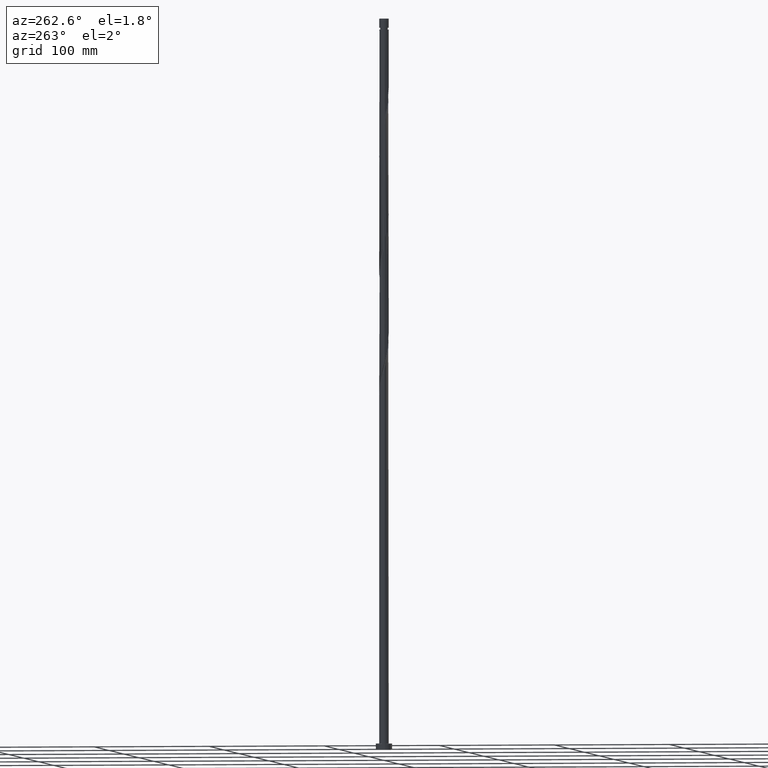
[diagram: clean part render]
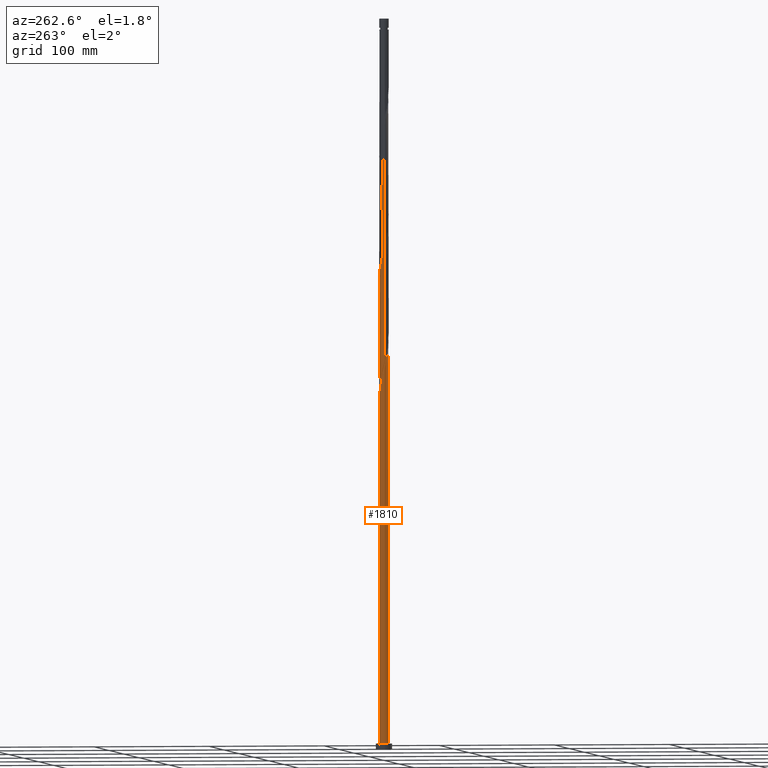
[diagram: same view with one face highlighted and labeled with its STEP entity id]
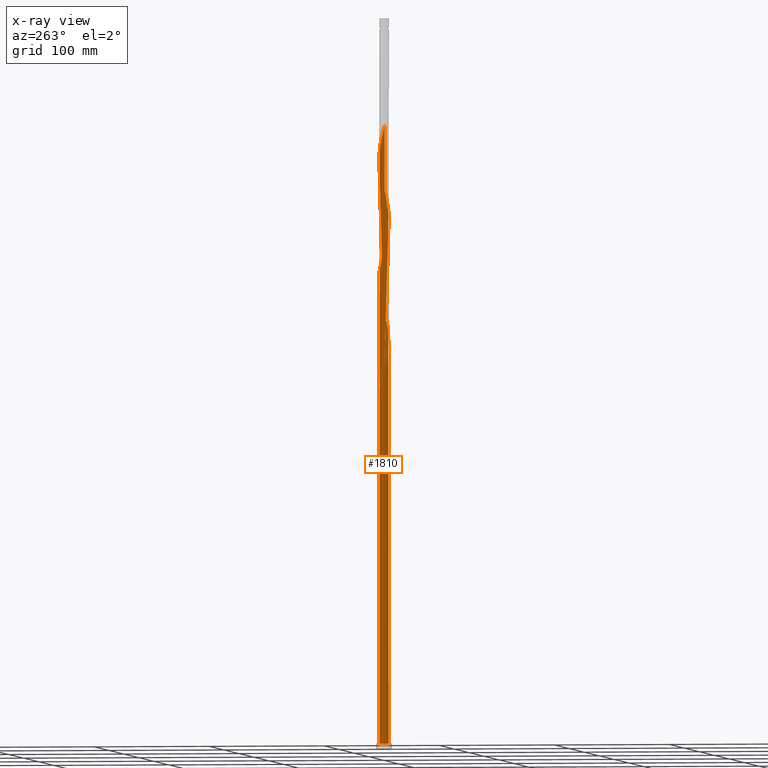
[diagram: x-ray of the same camera — body ghosted, the highlighted face saturated]
A machine part, auxiliary view. The second image highlights one B-rep face of the part: STEP entity #1810.
The next image is the same camera in x-ray: the body ghosted, the highlighted face saturated — about 0% of this face is hidden behind the body in this view.
In plain terms, the highlighted cylindrical surface (bore or boss wall) has radius 4.1 mm, axis along (-0, -0, -1).
Its self-contained STEP definition (entity closure, byte-faithful):
#2 = CARTESIAN_POINT ( 'NONE',  ( -3.815944723309901310, 1.546901999669808125, 328.7083605617157218 ) ) ;
#6 = CARTESIAN_POINT ( 'NONE',  ( 3.815944723309906195, 1.546901999669810568, 387.3848311499509691 ) ) ;
#19 = CARTESIAN_POINT ( 'NONE',  ( 4.058720558200568540, -0.6936334466987885694, 378.1201252675980982 ) ) ;
#28 = CARTESIAN_POINT ( 'NONE',  ( -1.777876039821442378, -3.713959708312408736, 452.2377723264215774 ) ) ;
#36 = CARTESIAN_POINT ( 'NONE',  ( 0.000000000000000000, 0.000000000000000000, 5.000000000000000000 ) ) ;
#41 = CARTESIAN_POINT ( 'NONE',  ( -0.3161830412741608032, -4.105407192027338503, 458.4142429146569953 ) ) ;
#52 = CARTESIAN_POINT ( 'NONE',  ( -3.698116610949403693, 1.770291934066281492, 530.9877723264214637 ) ) ;
#59 = DIRECTION ( 'NONE',  ( 1.000000000000000000, 0.000000000000000000, 0.000000000000000000 ) ) ;
#63 = CARTESIAN_POINT ( 'NONE',  ( -4.100000000000004974, 2.181056541376401172E-15, 538.4483870811393444 ) ) ;
#76 = CARTESIAN_POINT ( 'NONE',  ( 3.534074905425966584, -2.112972903465071273, 476.9436546793629077 ) ) ;
#83 = LINE ( 'NONE', #1486, #640 ) ;
#85 = CARTESIAN_POINT ( 'NONE',  ( -2.532132853688510821, 3.246943661231350475, 313.2671840911274899 ) ) ;
#87 = CARTESIAN_POINT ( 'NONE',  ( 0.3161830412741613583, 4.105407192027338503, 510.9142429146569384 ) ) ;
#90 = ORIENTED_EDGE ( 'NONE', *, *, #986, .F. ) ;
#96 = CARTESIAN_POINT ( 'NONE',  ( 3.862158316472838582, -1.427610964667493265, 480.0318899734804745 ) ) ;
#102 = CARTESIAN_POINT ( 'NONE',  ( -3.534074905425966584, 2.112972903465071717, 319.4436546793627940 ) ) ;
#122 = CARTESIAN_POINT ( 'NONE',  ( 2.532132853688510377, -3.246943661231350475, 365.7671840911275467 ) ) ;
#127 = EDGE_CURVE ( 'NONE', #1321, #903, #1931, .T. ) ;
#134 = CARTESIAN_POINT ( 'NONE',  ( -3.233092771992582382, -2.521331221337123729, 339.5171840911274899 ) ) ;
#153 = CARTESIAN_POINT ( 'NONE',  ( 1.188212229027912237, -3.942396685612406415, 359.5907135028922426 ) ) ;
#156 = CARTESIAN_POINT ( 'NONE',  ( -3.233092771992578829, 2.521331221337121953, 324.0760076205393716 ) ) ;
#160 = CARTESIAN_POINT ( 'NONE',  ( -3.641336619827728605, -1.884321528057675277, 441.4289487970098094 ) ) ;
#167 = CARTESIAN_POINT ( 'NONE',  ( -2.808887832909489735, 2.986661872749084790, 419.8113017381863870 ) ) ;
#179 = CARTESIAN_POINT ( 'NONE',  ( -3.815944723309906195, -1.546901999669810346, 439.8848311499511397 ) ) ;
#188 = CARTESIAN_POINT ( 'NONE',  ( 0.000000000000000000, 0.000000000000000000, 305.5465958558334023 ) ) ;
#190 = CARTESIAN_POINT ( 'NONE',  ( -2.430042627309597858, -3.324038621526145487, 449.1495370323039538 ) ) ;
#198 =( BOUNDED_CURVE ( )  B_SPLINE_CURVE ( 2, ( #1229, #1887, #292, #1081, #278, #270, #1268, #2023, #134, #747, #608, #1251, #440, #1090, #936, #914, #1743, #581, #1573, #947, #1580, #153, #1906, #420, #1701, #122, #1068, #260, #1295, #1449, #1112, #647, #964, #19, #334, #313, #1597, #1287, #1279, #6, #1791, #487, #1129, #813, #972, #1916, #1458, #1937, #466, #665, #1927, #991, #1120, #655, #1139, #804, #1759, #1306, #202, #980, #167, #474, #1770, #2068, #324, #1959, #835, #343, #1628, #639, #1750, #1469, #1607, #179, #160, #1948, #1783, #1617, #306, #190, #824, #28, #498, #1151, #1481, #41, #679, #1316, #956, #1588, #794, #1439, #1967, #355, #888, #1986, #247, #76, #509, #96, #1803, #693, #1499, #1163, #1675, #387, #376, #237, #730, #1664, #1687, #1527, #999, #520, #1827, #555, #541, #229, #853, #87, #218, #844, #367, #1202, #1194, #1814, #1642, #210, #1835, #1507, #1489, #1019, #52, #866, #1009, #1516, #1651, #1032, #63 ),
 .UNSPECIFIED., .F., .T. ) 
 B_SPLINE_CURVE_WITH_KNOTS ( ( 3, 2, 2, 2, 2, 2, 2, 2, 2, 2, 2, 2, 2, 2, 2, 2, 2, 2, 2, 2, 2, 2, 2, 2, 2, 2, 2, 2, 2, 2, 2, 2, 2, 2, 2, 2, 2, 2, 2, 2, 2, 2, 2, 2, 2, 2, 2, 2, 2, 2, 2, 2, 2, 2, 2, 2, 2, 2, 2, 2, 2, 2, 2, 2, 2, 2, 2, 2, 2, 3 ),
 ( 0.05452935731629034166, 0.05882352941176471894, 0.06617647058823528106, 0.07352941176470584317, 0.08088235294117651630, 0.08823529411764707842, 0.09558823529411764053, 0.1029411764705882026, 0.1102941176470588758, 0.1176470588235294379, 0.1250000000000000000, 0.1323529411764705621, 0.1397058823529411242, 0.1470588235294117974, 0.1544117647058823595, 0.1617647058823529216, 0.1691176470588234837, 0.1764705882352941568, 0.1838235294117647189, 0.1911764705882352811, 0.1985294117647058432, 0.2058823529411765163, 0.2132352941176470784, 0.2205882352941176405, 0.2279411764705882026, 0.2352941176470588758, 0.2426470588235294379, 0.2500000000000000000, 0.2573529411764705621, 0.2647058823529411242, 0.2720588235294117974, 0.2794117647058823595, 0.2867647058823529216, 0.2941176470588234837, 0.3014705882352941568, 0.3088235294117647189, 0.3161764705882352811, 0.3235294117647058432, 0.3308823529411765163, 0.3382352941176470784, 0.3455882352941176405, 0.3529411764705882026, 0.3602941176470588758, 0.3676470588235294379, 0.3750000000000000000, 0.3823529411764705621, 0.3897058823529411242, 0.3970588235294117974, 0.4044117647058823595, 0.4117647058823529216, 0.4191176470588234837, 0.4264705882352941568, 0.4338235294117647189, 0.4411764705882352811, 0.4485294117647058432, 0.4558823529411765163, 0.4632352941176470784, 0.4705882352941176405, 0.4779411764705882026, 0.4852941176470588758, 0.4926470588235294379, 0.5000000000000000000, 0.5073529411764705621, 0.5147058823529411242, 0.5220588235294116863, 0.5294117647058823595, 0.5367647058823529216, 0.5441176470588235947, 0.5514705882352941568, 0.5545293573162903833 ),
 .UNSPECIFIED. ) 
 CURVE ( )  GEOMETRIC_REPRESENTATION_ITEM ( )  RATIONAL_B_SPLINE_CURVE ( ( 0.9072066346053393460, 0.9068261157891062130, 0.9090909090909774504, 0.9052128875410084818, 0.9090909090909774504, 0.9052128875410084818, 0.9090909090909774504, 0.9052128875410084818, 0.9090909090909774504, 0.9052128875410084818, 0.9090909090909774504, 0.9052128875410084818, 0.9090909090909774504, 0.9052128875410084818, 0.9090909090909774504, 0.9052128875410084818, 0.9090909090909774504, 0.9052128875410084818, 0.9090909090909774504, 0.9052128875410084818, 0.9090909090909774504, 0.9052128875410084818, 0.9090909090909774504, 0.9052128875410084818, 0.9090909090909774504, 0.9052128875410084818, 0.9090909090909774504, 0.9052128875410084818, 0.9090909090909774504, 0.9052128875410084818, 0.9090909090909774504, 0.9052128875410084818, 0.9090909090909774504, 0.9052128875410084818, 0.9090909090909774504, 0.9052128875410084818, 0.9090909090909774504, 0.9052128875410084818, 0.9090909090909774504, 0.9052128875410084818, 0.9090909090909774504, 0.9052128875410084818, 0.9090909090909774504, 0.9052128875410084818, 0.9090909090909774504, 0.9052128875410084818, 0.9090909090909774504, 0.9052128875410084818, 0.9090909090909774504, 0.9052128875410084818, 0.9090909090909774504, 0.9052128875410084818, 0.9090909090909774504, 0.9052128875410084818, 0.9090909090909774504, 0.9052128875410084818, 0.9090909090909774504, 0.9052128875410084818, 0.9090909090909774504, 0.9052128875410084818, 0.9090909090909774504, 0.9052128875410084818, 0.9090909090909774504, 0.9052128875410084818, 0.9090909090909774504, 0.9052128875410084818, 0.9090909090909774504, 0.9052128875410084818, 0.9090909090909774504, 0.9052128875410084818, 0.9090909090909774504, 0.9052128875410084818, 0.9090909090909774504, 0.9052128875410084818, 0.9090909090909774504, 0.9052128875410084818, 0.9090909090909774504, 0.9052128875410084818, 0.9090909090909774504, 0.9052128875410084818, 0.9090909090909774504, 0.9052128875410084818, 0.9090909090909774504, 0.9052128875410084818, 0.9090909090909774504, 0.9052128875410084818, 0.9090909090909774504, 0.9052128875410084818, 0.9090909090909774504, 0.9052128875410084818, 0.9090909090909774504, 0.9052128875410084818, 0.9090909090909774504, 0.9052128875410084818, 0.9090909090909774504, 0.9052128875410084818, 0.9090909090909774504, 0.9052128875410084818, 0.9090909090909774504, 0.9052128875410084818, 0.9090909090909774504, 0.9052128875410084818, 0.9090909090909774504, 0.9052128875410084818, 0.9090909090909774504, 0.9052128875410084818, 0.9090909090909774504, 0.9052128875410084818, 0.9090909090909774504, 0.9052128875410084818, 0.9090909090909774504, 0.9052128875410084818, 0.9090909090909774504, 0.9052128875410084818, 0.9090909090909774504, 0.9052128875410084818, 0.9090909090909774504, 0.9052128875410084818, 0.9090909090909774504, 0.9052128875410084818, 0.9090909090909774504, 0.9052128875410084818, 0.9090909090909774504, 0.9052128875410084818, 0.9090909090909774504, 0.9052128875410084818, 0.9090909090909774504, 0.9052128875410084818, 0.9090909090909774504, 0.9052128875410084818, 0.9090909090909774504, 0.9052128875410084818, 0.9090909090909774504, 0.9052128875410084818, 0.9090909090909774504, 0.9052128875410084818, 0.9090909090909774504, 0.9074776808428798303, 0.9072066346053390129 ) ) 
 REPRESENTATION_ITEM ( '' )  );
#202 = CARTESIAN_POINT ( 'NONE',  ( -2.212263500780659253, 3.451940063661843805, 416.7230664440687633 ) ) ;
#210 = CARTESIAN_POINT ( 'NONE',  ( -2.532132853688510821, 3.246943661231350475, 523.2671840911274330 ) ) ;
#218 = CARTESIAN_POINT ( 'NONE',  ( -0.06369206327640078436, 4.099505253207468947, 512.4583605617158355 ) ) ;
#229 = CARTESIAN_POINT ( 'NONE',  ( 1.065166016124446946, 3.977406351635793591, 507.8260076205393148 ) ) ;
#234 = CARTESIAN_POINT ( 'NONE',  ( -2.212263500780659253, 3.451940063661843805, 311.7230664440688201 ) ) ;
#237 = CARTESIAN_POINT ( 'NONE',  ( 3.815944723309906195, 1.546901999669810568, 492.3848311499510260 ) ) ;
#247 = CARTESIAN_POINT ( 'NONE',  ( 3.309858858778218504, -2.419676493865943190, 475.3995370323040106 ) ) ;
#260 = CARTESIAN_POINT ( 'NONE',  ( 3.085642812130469093, -2.726380084266818216, 368.8554193852451135 ) ) ;
#270 = CARTESIAN_POINT ( 'NONE',  ( -3.815944723309906195, -1.546901999669810346, 334.8848311499510828 ) ) ;
#278 = CARTESIAN_POINT ( 'NONE',  ( -3.925579116376544775, -1.183143525134793927, 333.3407135028921857 ) ) ;
#292 = CARTESIAN_POINT ( 'NONE',  ( -4.076140724330358900, -0.4416749884876984833, 330.2524782087745052 ) ) ;
#303 = CARTESIAN_POINT ( 'NONE',  ( 0.06369206327640004883, 4.099505253207465394, 308.6348311499510828 ) ) ;
#306 = CARTESIAN_POINT ( 'NONE',  ( -2.714749827474607358, -3.072480003877426480, 447.6054193852451704 ) ) ;
#313 = CARTESIAN_POINT ( 'NONE',  ( 4.117067939217537109, 0.06396492637562069261, 381.2083605617158923 ) ) ;
#319 = CARTESIAN_POINT ( 'NONE',  ( -4.099999999999999645, 0.000000000000000000, 5.000000000000000000 ) ) ;
#324 = CARTESIAN_POINT ( 'NONE',  ( -3.698116610949403693, 1.770291934066281492, 425.9877723264216343 ) ) ;
#334 = CARTESIAN_POINT ( 'NONE',  ( 4.087894248709052825, -0.3148342601615855552, 379.6642429146569953 ) ) ;
#339 = CARTESIAN_POINT ( 'NONE',  ( -2.714749827474603361, 3.072480003877424259, 320.9877723264217479 ) ) ;
#343 = CARTESIAN_POINT ( 'NONE',  ( -4.058720558200568540, 0.6936334466987886804, 430.6201252675980982 ) ) ;
#355 = CARTESIAN_POINT ( 'NONE',  ( 2.532132853688510377, -3.246943661231350475, 470.7671840911275467 ) ) ;
#367 = CARTESIAN_POINT ( 'NONE',  ( -0.8158896984274341957, 4.018000000000002458, 515.5465958558334023 ) ) ;
#376 = CARTESIAN_POINT ( 'NONE',  ( 3.925579116376544775, 1.183143525134792373, 490.8407135028922426 ) ) ;
#387 = CARTESIAN_POINT ( 'NONE',  ( 4.035213509443182467, 0.8193850505997775091, 489.2965958558334592 ) ) ;
#405 = CARTESIAN_POINT ( 'NONE',  ( -1.892394147872808352, 3.656936466092338467, 310.1789487970098662 ) ) ;
#420 = CARTESIAN_POINT ( 'NONE',  ( 1.892394147872808352, -3.656936466092338467, 362.6789487970098662 ) ) ;
#440 = CARTESIAN_POINT ( 'NONE',  ( -2.103959333565521117, -3.518999164919276890, 345.6936546793627940 ) ) ;
#460 =( BOUNDED_CURVE ( )  B_SPLINE_CURVE ( 2, ( #1766, #1124, #1445, #820, #1107, #2, #644, #1147, #156, #1603, #339, #790, #1787, #1265, #1283, #1903, #1922, #1747, #303, #809, #952 ),
 .UNSPECIFIED., .F., .T. ) 
 B_SPLINE_CURVE_WITH_KNOTS ( ( 3, 2, 2, 2, 2, 2, 2, 2, 2, 2, 3 ),
 ( 0.9295293573162903833, 0.9338235294117647189, 0.9411764705882352811, 0.9485294117647058432, 0.9558823529411765163, 0.9632352941176470784, 0.9705882352941176405, 0.9779411764705882026, 0.9852941176470588758, 0.9926470588235294379, 1.000000000000000000 ),
 .UNSPECIFIED. ) 
 CURVE ( )  GEOMETRIC_REPRESENTATION_ITEM ( )  RATIONAL_B_SPLINE_CURVE ( ( 0.9072066346053340169, 0.9068261157891011059, 0.9090909090909725654, 0.9052128875410037079, 0.9090909090909725654, 0.9052128875410037079, 0.9090909090909725654, 0.9052128875410037079, 0.9090909090909725654, 0.9052128875410037079, 0.9090909090909725654, 0.9052128875410037079, 0.9090909090909725654, 0.9052128875410037079, 0.9090909090909725654, 0.9052128875410037079, 0.9090909090909725654, 0.9052128875410037079, 0.9090909090909725654, 0.9052128875410037079, 0.9090909090909725654 ) ) 
 REPRESENTATION_ITEM ( '' )  );
#464 = EDGE_LOOP ( 'NONE', ( #90, #1605, #534, #833, #842, #637, #1794, #1847, #1679 ) ) ;
#466 = CARTESIAN_POINT ( 'NONE',  ( 1.421521027972946438, 3.845683029974098943, 401.2818899734805314 ) ) ;
#474 = CARTESIAN_POINT ( 'NONE',  ( -3.085642812130469537, 2.726380084266817327, 421.3554193852450567 ) ) ;
#487 = CARTESIAN_POINT ( 'NONE',  ( 3.466728516345551458, 2.221741056445539542, 390.4730664440686496 ) ) ;
#490 = DIRECTION ( 'NONE',  ( 1.000000000000000000, 0.000000000000000000, 0.000000000000000000 ) ) ;
#498 = CARTESIAN_POINT ( 'NONE',  ( -1.421521027972944440, -3.845683029974101164, 453.7818899734804745 ) ) ;
#509 = CARTESIAN_POINT ( 'NONE',  ( 3.698116610949403249, -1.770291934066282158, 478.4877723264215774 ) ) ;
#520 = CARTESIAN_POINT ( 'NONE',  ( 2.430042627309597414, 3.324038621526145931, 501.6495370323039538 ) ) ;
#527 = CARTESIAN_POINT ( 'NONE',  ( -4.100000000000004974, 2.181056541376401172E-15, 538.4483870811393444 ) ) ;
#534 = ORIENTED_EDGE ( 'NONE', *, *, #1908, .T. ) ;
#541 = CARTESIAN_POINT ( 'NONE',  ( 1.421521027972946438, 3.845683029974098943, 506.2818899734804177 ) ) ;
#555 = CARTESIAN_POINT ( 'NONE',  ( 1.777876039821443266, 3.713959708312408292, 504.7377723264216911 ) ) ;
#575 = CARTESIAN_POINT ( 'NONE',  ( -4.087894248709052825, 0.3148342601615842229, 327.1642429146570521 ) ) ;
#581 = CARTESIAN_POINT ( 'NONE',  ( -0.3161830412741608032, -4.105407192027338503, 353.4142429146570521 ) ) ;
#599 = VERTEX_POINT ( 'NONE', #1514 ) ;
#608 = CARTESIAN_POINT ( 'NONE',  ( -2.714749827474607358, -3.072480003877426480, 342.6054193852451704 ) ) ;
#637 = ORIENTED_EDGE ( 'NONE', *, *, #1908, .F. ) ;
#639 = CARTESIAN_POINT ( 'NONE',  ( -4.117067939217537109, -0.06396492637561930483, 433.7083605617156650 ) ) ;
#640 = VECTOR ( 'NONE', #830, 1000.000000000000000 ) ;
#644 = CARTESIAN_POINT ( 'NONE',  ( -3.641336619827724164, 1.884321528057673278, 327.1642429146570521 ) ) ;
#647 = CARTESIAN_POINT ( 'NONE',  ( 3.862158316472838582, -1.427610964667493265, 375.0318899734804745 ) ) ;
#653 = VERTEX_POINT ( 'NONE', #1833 ) ;
#655 = CARTESIAN_POINT ( 'NONE',  ( -0.4435671678269595408, 4.093603314387599390, 409.0024782087745621 ) ) ;
#665 = CARTESIAN_POINT ( 'NONE',  ( 1.065166016124446946, 3.977406351635793591, 402.8260076205392579 ) ) ;
#679 = CARTESIAN_POINT ( 'NONE',  ( 0.06369206327639952148, -4.099505253207469835, 459.9583605617157218 ) ) ;
#693 = CARTESIAN_POINT ( 'NONE',  ( 4.058720558200568540, -0.6936334466987885694, 483.1201252675980413 ) ) ;
#697 = CYLINDRICAL_SURFACE ( 'NONE', #1138, 4.099999999999999645 ) ;
#730 = CARTESIAN_POINT ( 'NONE',  ( 3.641336619827728605, 1.884321528057674389, 493.9289487970099799 ) ) ;
#740 = CARTESIAN_POINT ( 'NONE',  ( -3.309858858778218504, 2.419676493865943190, 317.8995370323040106 ) ) ;
#744 =( BOUNDED_CURVE ( )  B_SPLINE_CURVE ( 2, ( #1038, #1030, #1672, #405, #234, #85, #885, #2007, #740, #102, #896, #1533, #1224, #1379, #575, #2017, #1860 ),
 .UNSPECIFIED., .F., .T. ) 
 B_SPLINE_CURVE_WITH_KNOTS ( ( 3, 2, 2, 2, 2, 2, 2, 2, 3 ),
 ( 0.000000000000000000, 0.007352941176470562112, 0.01470588235294112422, 0.02205882352941179389, 0.02941176470588235947, 0.03676470588235292158, 0.04411764705882347676, 0.05147058823529415683, 0.05452935731629034166 ),
 .UNSPECIFIED. ) 
 CURVE ( )  GEOMETRIC_REPRESENTATION_ITEM ( )  RATIONAL_B_SPLINE_CURVE ( ( 0.9090909090909774504, 0.9052128875410084818, 0.9090909090909774504, 0.9052128875410084818, 0.9090909090909774504, 0.9052128875410084818, 0.9090909090909774504, 0.9052128875410084818, 0.9090909090909774504, 0.9052128875410084818, 0.9090909090909774504, 0.9052128875410084818, 0.9090909090909774504, 0.9052128875410084818, 0.9090909090909774504, 0.9074776808428799413, 0.9072066346053393460 ) ) 
 REPRESENTATION_ITEM ( '' )  );
#747 = CARTESIAN_POINT ( 'NONE',  ( -2.999457027639614637, -2.820921386228709249, 341.0613017381862164 ) ) ;
#774 = EDGE_CURVE ( 'NONE', #1321, #653, #744, .T. ) ;
#790 = CARTESIAN_POINT ( 'NONE',  ( -2.430042627309594305, 3.324038621526141490, 319.4436546793627372 ) ) ;
#794 = CARTESIAN_POINT ( 'NONE',  ( 1.540303188450359073, -3.799666575852372663, 466.1348311499510260 ) ) ;
#804 = CARTESIAN_POINT ( 'NONE',  ( -1.188212229027911349, 3.942396685612406415, 412.0907135028922426 ) ) ;
#809 = CARTESIAN_POINT ( 'NONE',  ( 0.4435671678269590412, 4.093603314387594061, 307.0907135028922426 ) ) ;
#813 = CARTESIAN_POINT ( 'NONE',  ( 2.999457027639615081, 2.820921386228707917, 393.5613017381864438 ) ) ;
#820 = CARTESIAN_POINT ( 'NONE',  ( -4.035213509443178914, 0.8193850505997777312, 331.7965958558334023 ) ) ;
#822 = DIRECTION ( 'NONE',  ( 0.000000000000000000, -0.000000000000000000, -1.000000000000000000 ) ) ;
#824 = CARTESIAN_POINT ( 'NONE',  ( -2.103959333565521117, -3.518999164919276890, 450.6936546793627940 ) ) ;
#830 = DIRECTION ( 'NONE',  ( -0.000000000000000000, -0.000000000000000000, -1.000000000000000000 ) ) ;
#833 = ORIENTED_EDGE ( 'NONE', *, *, #1987, .T. ) ;
#835 = CARTESIAN_POINT ( 'NONE',  ( -3.960439437336703783, 1.060622205683140473, 429.0760076205393148 ) ) ;
#842 = ORIENTED_EDGE ( 'NONE', *, *, #1092, .T. ) ;
#844 = CARTESIAN_POINT ( 'NONE',  ( -0.4435671678269595408, 4.093603314387599390, 514.0024782087745052 ) ) ;
#853 = CARTESIAN_POINT ( 'NONE',  ( 0.6906745286993040134, 4.041406771831566047, 509.3701252675980413 ) ) ;
#866 = CARTESIAN_POINT ( 'NONE',  ( -3.862158316472839914, 1.427610964667492377, 532.5318899734804745 ) ) ;
#885 = CARTESIAN_POINT ( 'NONE',  ( -2.808887832909489735, 2.986661872749084790, 314.8113017381863301 ) ) ;
#888 = CARTESIAN_POINT ( 'NONE',  ( 2.808887832909490179, -2.986661872749084345, 472.3113017381864438 ) ) ;
#896 = CARTESIAN_POINT ( 'NONE',  ( -3.698116610949403693, 1.770291934066281492, 320.9877723264215774 ) ) ;
#903 = VERTEX_POINT ( 'NONE', #1619 ) ;
#914 = CARTESIAN_POINT ( 'NONE',  ( -1.065166016124447834, -3.977406351635792703, 350.3260076205392011 ) ) ;
#936 = CARTESIAN_POINT ( 'NONE',  ( -1.421521027972944440, -3.845683029974101164, 348.7818899734804177 ) ) ;
#947 = CARTESIAN_POINT ( 'NONE',  ( 0.4435671678269600404, -4.093603314387599390, 356.5024782087745621 ) ) ;
#952 = CARTESIAN_POINT ( 'NONE',  ( 0.8158896984274358610, 4.017999999999999794, 305.5465958558334023 ) ) ;
#956 = CARTESIAN_POINT ( 'NONE',  ( 0.8158896984274346398, -4.018000000000002458, 463.0465958558332318 ) ) ;
#962 = DIRECTION ( 'NONE',  ( -1.000000000000000000, 0.000000000000000000, 0.000000000000000000 ) ) ;
#964 = CARTESIAN_POINT ( 'NONE',  ( 3.960439437336703783, -1.060622205683139141, 376.5760076205392579 ) ) ;
#966 = LINE ( 'NONE', #1154, #1777 ) ;
#971 = AXIS2_PLACEMENT_3D ( 'NONE', #1298, #1939, #490 ) ;
#972 = CARTESIAN_POINT ( 'NONE',  ( 2.714749827474608246, 3.072480003877426480, 395.1054193852451135 ) ) ;
#974 = DIRECTION ( 'NONE',  ( -0.000000000000000000, -0.000000000000000000, -1.000000000000000000 ) ) ;
#980 = CARTESIAN_POINT ( 'NONE',  ( -2.532132853688510821, 3.246943661231350475, 418.2671840911273762 ) ) ;
#986 = EDGE_CURVE ( 'NONE', #1913, #1293, #966, .T. ) ;
#991 = CARTESIAN_POINT ( 'NONE',  ( 0.3161830412741613583, 4.105407192027338503, 405.9142429146569384 ) ) ;
#999 = CARTESIAN_POINT ( 'NONE',  ( 2.714749827474608246, 3.072480003877426480, 500.1054193852451135 ) ) ;
#1009 = CARTESIAN_POINT ( 'NONE',  ( -3.960439437336703783, 1.060622205683140473, 534.0760076205392579 ) ) ;
#1019 = CARTESIAN_POINT ( 'NONE',  ( -3.534074905425966584, 2.112972903465071717, 529.4436546793627940 ) ) ;
#1030 = CARTESIAN_POINT ( 'NONE',  ( -1.188212229027911349, 3.942396685612406415, 307.0907135028922426 ) ) ;
#1032 = CARTESIAN_POINT ( 'NONE',  ( -4.100000000000004974, 0.1576498703394998147, 537.8049813290796237 ) ) ;
#1038 = CARTESIAN_POINT ( 'NONE',  ( -0.8158896984274341957, 4.018000000000002458, 305.5465958558334023 ) ) ;
#1068 = CARTESIAN_POINT ( 'NONE',  ( 2.808887832909490179, -2.986661872749084345, 367.3113017381863870 ) ) ;
#1073 = AXIS2_PLACEMENT_3D ( 'NONE', #36, #1323, #59 ) ;
#1081 = CARTESIAN_POINT ( 'NONE',  ( -4.035213509443182467, -0.8193850505997778422, 331.7965958558334023 ) ) ;
#1090 = CARTESIAN_POINT ( 'NONE',  ( -1.777876039821442378, -3.713959708312408736, 347.2377723264215774 ) ) ;
#1092 = EDGE_CURVE ( 'NONE', #599, #1703, #1274, .T. ) ;
#1107 = CARTESIAN_POINT ( 'NONE',  ( -3.925579116376539890, 1.183143525134793261, 330.2524782087746757 ) ) ;
#1112 = CARTESIAN_POINT ( 'NONE',  ( 3.698116610949403249, -1.770291934066282158, 373.4877723264216911 ) ) ;
#1120 = CARTESIAN_POINT ( 'NONE',  ( -0.06369206327640078436, 4.099505253207468947, 407.4583605617156650 ) ) ;
#1124 = CARTESIAN_POINT ( 'NONE',  ( -4.100000000000000533, 0.2214819330849834844, 334.2408853985148198 ) ) ;
#1129 = CARTESIAN_POINT ( 'NONE',  ( 3.233092771992581937, 2.521331221337125061, 392.0171840911274330 ) ) ;
#1138 = AXIS2_PLACEMENT_3D ( 'NONE', #1635, #1180, #1659 ) ;
#1139 = CARTESIAN_POINT ( 'NONE',  ( -0.8158896984274341957, 4.018000000000002458, 410.5465958558334023 ) ) ;
#1147 = CARTESIAN_POINT ( 'NONE',  ( -3.466728516345546129, 2.221741056445537765, 325.6201252675981550 ) ) ;
#1151 = CARTESIAN_POINT ( 'NONE',  ( -1.065166016124447834, -3.977406351635792703, 455.3260076205392579 ) ) ;
#1154 = CARTESIAN_POINT ( 'NONE',  ( -4.099999999999999645, 0.000000000000000000, 630.0000000000000000 ) ) ;
#1163 = CARTESIAN_POINT ( 'NONE',  ( 4.117067939217537109, 0.06396492637562069261, 486.2083605617158355 ) ) ;
#1180 = DIRECTION ( 'NONE',  ( -0.000000000000000000, -0.000000000000000000, -1.000000000000000000 ) ) ;
#1194 = CARTESIAN_POINT ( 'NONE',  ( -1.540303188450360405, 3.799666575852372663, 518.6348311499509691 ) ) ;
#1202 = CARTESIAN_POINT ( 'NONE',  ( -1.188212229027911349, 3.942396685612406415, 517.0907135028921857 ) ) ;
#1224 = CARTESIAN_POINT ( 'NONE',  ( -3.960439437336703783, 1.060622205683140473, 324.0760076205392011 ) ) ;
#1229 = CARTESIAN_POINT ( 'NONE',  ( -4.100000000000004974, 5.527335070611427648E-15, 328.4483870811392876 ) ) ;
#1232 = AXIS2_PLACEMENT_3D ( 'NONE', #188, #822, #962 ) ;
#1240 = CARTESIAN_POINT ( 'NONE',  ( -0.8158896984274341957, 4.018000000000002458, 305.5465958558334023 ) ) ;
#1251 = CARTESIAN_POINT ( 'NONE',  ( -2.430042627309597858, -3.324038621526145487, 344.1495370323040675 ) ) ;
#1265 = CARTESIAN_POINT ( 'NONE',  ( -1.777876039821439491, 3.713959708312405184, 316.3554193852452272 ) ) ;
#1268 = CARTESIAN_POINT ( 'NONE',  ( -3.641336619827728605, -1.884321528057675277, 336.4289487970098094 ) ) ;
#1274 = CIRCLE ( 'NONE', #971, 4.099999999999999645 ) ;
#1279 = CARTESIAN_POINT ( 'NONE',  ( 3.925579116376544775, 1.183143525134792373, 385.8407135028922426 ) ) ;
#1283 = CARTESIAN_POINT ( 'NONE',  ( -1.421521027972942885, 3.845683029974097611, 314.8113017381865006 ) ) ;
#1287 = CARTESIAN_POINT ( 'NONE',  ( 4.035213509443182467, 0.8193850505997775091, 384.2965958558333455 ) ) ;
#1293 = VERTEX_POINT ( 'NONE', #2052 ) ;
#1295 = CARTESIAN_POINT ( 'NONE',  ( 3.309858858778218504, -2.419676493865943190, 370.3995370323040675 ) ) ;
#1298 = CARTESIAN_POINT ( 'NONE',  ( 0.000000000000000000, 0.000000000000000000, 5.000000000000000000 ) ) ;
#1306 = CARTESIAN_POINT ( 'NONE',  ( -1.892394147872808352, 3.656936466092338467, 415.1789487970098662 ) ) ;
#1316 = CARTESIAN_POINT ( 'NONE',  ( 0.4435671678269600404, -4.093603314387599390, 461.5024782087746189 ) ) ;
#1321 = VERTEX_POINT ( 'NONE', #1240 ) ;
#1323 = DIRECTION ( 'NONE',  ( 0.000000000000000000, 0.000000000000000000, 1.000000000000000000 ) ) ;
#1356 = FACE_OUTER_BOUND ( 'NONE', #464, .T. ) ;
#1379 = CARTESIAN_POINT ( 'NONE',  ( -4.058720558200568540, 0.6936334466987886804, 325.6201252675980413 ) ) ;
#1432 = EDGE_CURVE ( 'NONE', #653, #1913, #198, .T. ) ;
#1439 = CARTESIAN_POINT ( 'NONE',  ( 1.892394147872808352, -3.656936466092338467, 467.6789487970098662 ) ) ;
#1445 = CARTESIAN_POINT ( 'NONE',  ( -4.076140724330355347, 0.4416749884876990384, 333.3407135028923562 ) ) ;
#1449 = CARTESIAN_POINT ( 'NONE',  ( 3.534074905425966584, -2.112972903465071273, 371.9436546793627372 ) ) ;
#1458 = CARTESIAN_POINT ( 'NONE',  ( 2.103959333565520229, 3.518999164919276890, 398.1936546793627940 ) ) ;
#1469 = CARTESIAN_POINT ( 'NONE',  ( -4.035213509443182467, -0.8193850505997778422, 436.7965958558332886 ) ) ;
#1481 = CARTESIAN_POINT ( 'NONE',  ( -0.6906745286993036803, -4.041406771831566047, 456.8701252675980413 ) ) ;
#1486 = CARTESIAN_POINT ( 'NONE',  ( -4.099999999999999645, 0.000000000000000000, 630.0000000000000000 ) ) ;
#1489 = CARTESIAN_POINT ( 'NONE',  ( -3.309858858778218504, 2.419676493865943190, 527.8995370323040106 ) ) ;
#1499 = CARTESIAN_POINT ( 'NONE',  ( 4.087894248709052825, -0.3148342601615855552, 484.6642429146569384 ) ) ;
#1507 = CARTESIAN_POINT ( 'NONE',  ( -3.085642812130469537, 2.726380084266817327, 526.3554193852451135 ) ) ;
#1514 = CARTESIAN_POINT ( 'NONE',  ( 4.099999999999999645, 0.000000000000000000, 5.000000000000000000 ) ) ;
#1516 = CARTESIAN_POINT ( 'NONE',  ( -4.058720558200568540, 0.6936334466987886804, 535.6201252675980413 ) ) ;
#1527 = CARTESIAN_POINT ( 'NONE',  ( 2.999457027639615081, 2.820921386228707917, 498.5613017381863301 ) ) ;
#1533 = CARTESIAN_POINT ( 'NONE',  ( -3.862158316472839914, 1.427610964667492377, 322.5318899734805314 ) ) ;
#1573 = CARTESIAN_POINT ( 'NONE',  ( 0.06369206327639952148, -4.099505253207469835, 354.9583605617158923 ) ) ;
#1580 = CARTESIAN_POINT ( 'NONE',  ( 0.8158896984274346398, -4.018000000000002458, 358.0465958558334592 ) ) ;
#1588 = CARTESIAN_POINT ( 'NONE',  ( 1.188212229027912237, -3.942396685612406415, 464.5907135028921857 ) ) ;
#1597 = CARTESIAN_POINT ( 'NONE',  ( 4.076140724330359788, 0.4416749884876989274, 382.7524782087745052 ) ) ;
#1603 = CARTESIAN_POINT ( 'NONE',  ( -2.999457027639610640, 2.820921386228705252, 322.5318899734803608 ) ) ;
#1605 = ORIENTED_EDGE ( 'NONE', *, *, #1432, .F. ) ;
#1607 = CARTESIAN_POINT ( 'NONE',  ( -3.925579116376544775, -1.183143525134793927, 438.3407135028922426 ) ) ;
#1617 = CARTESIAN_POINT ( 'NONE',  ( -2.999457027639614637, -2.820921386228709249, 446.0613017381863301 ) ) ;
#1619 = CARTESIAN_POINT ( 'NONE',  ( 0.8158896984274358610, 4.017999999999999794, 305.5465958558334023 ) ) ;
#1628 = CARTESIAN_POINT ( 'NONE',  ( -4.087894248709052825, 0.3148342601615842229, 432.1642429146569953 ) ) ;
#1635 = CARTESIAN_POINT ( 'NONE',  ( 0.000000000000000000, 0.000000000000000000, 630.0000000000000000 ) ) ;
#1642 = CARTESIAN_POINT ( 'NONE',  ( -2.212263500780659253, 3.451940063661843805, 521.7230664440686496 ) ) ;
#1651 = CARTESIAN_POINT ( 'NONE',  ( -4.087894248709052825, 0.3148342601615842229, 537.1642429146569384 ) ) ;
#1659 = DIRECTION ( 'NONE',  ( -1.000000000000000000, 0.000000000000000000, 0.000000000000000000 ) ) ;
#1664 = CARTESIAN_POINT ( 'NONE',  ( 3.466728516345551458, 2.221741056445539542, 495.4730664440687633 ) ) ;
#1672 = CARTESIAN_POINT ( 'NONE',  ( -1.540303188450360405, 3.799666575852372663, 308.6348311499510828 ) ) ;
#1675 = CARTESIAN_POINT ( 'NONE',  ( 4.076140724330359788, 0.4416749884876989274, 487.7524782087746757 ) ) ;
#1679 = ORIENTED_EDGE ( 'NONE', *, *, #1754, .F. ) ;
#1687 = CARTESIAN_POINT ( 'NONE',  ( 3.233092771992581937, 2.521331221337125061, 497.0171840911274899 ) ) ;
#1701 = CARTESIAN_POINT ( 'NONE',  ( 2.212263500780659253, -3.451940063661843805, 364.2230664440687065 ) ) ;
#1703 = VERTEX_POINT ( 'NONE', #319 ) ;
#1714 = CIRCLE ( 'NONE', #1073, 4.099999999999999645 ) ;
#1743 = CARTESIAN_POINT ( 'NONE',  ( -0.6906745286993036803, -4.041406771831566047, 351.8701252675980982 ) ) ;
#1747 = CARTESIAN_POINT ( 'NONE',  ( -0.3161830412741589158, 4.105407192027332286, 310.1789487970098662 ) ) ;
#1750 = CARTESIAN_POINT ( 'NONE',  ( -4.076140724330358900, -0.4416749884876984833, 435.2524782087746189 ) ) ;
#1754 = EDGE_CURVE ( 'NONE', #1293, #903, #460, .T. ) ;
#1759 = CARTESIAN_POINT ( 'NONE',  ( -1.540303188450360405, 3.799666575852372663, 413.6348311499510828 ) ) ;
#1766 = CARTESIAN_POINT ( 'NONE',  ( -4.099999999999999645, -5.273376432232011292E-15, 335.1448046305274602 ) ) ;
#1770 = CARTESIAN_POINT ( 'NONE',  ( -3.309858858778218504, 2.419676493865943190, 422.8995370323039538 ) ) ;
#1777 = VECTOR ( 'NONE', #974, 1000.000000000000000 ) ;
#1783 = CARTESIAN_POINT ( 'NONE',  ( -3.233092771992582382, -2.521331221337123729, 444.5171840911274330 ) ) ;
#1787 = CARTESIAN_POINT ( 'NONE',  ( -2.103959333565517564, 3.518999164919273781, 317.8995370323041243 ) ) ;
#1791 = CARTESIAN_POINT ( 'NONE',  ( 3.641336619827728605, 1.884321528057674389, 388.9289487970098094 ) ) ;
#1794 = ORIENTED_EDGE ( 'NONE', *, *, #774, .F. ) ;
#1803 = CARTESIAN_POINT ( 'NONE',  ( 3.960439437336703783, -1.060622205683139141, 481.5760076205392579 ) ) ;
#1810 = ADVANCED_FACE ( 'NONE', ( #1356 ), #697, .T. ) ;
#1814 = CARTESIAN_POINT ( 'NONE',  ( -1.892394147872808352, 3.656936466092338467, 520.1789487970098662 ) ) ;
#1827 = CARTESIAN_POINT ( 'NONE',  ( 2.103959333565520229, 3.518999164919276890, 503.1936546793627372 ) ) ;
#1833 = CARTESIAN_POINT ( 'NONE',  ( -4.100000000000004974, 5.527335070611426859E-15, 328.4483870811393444 ) ) ;
#1835 = CARTESIAN_POINT ( 'NONE',  ( -2.808887832909489735, 2.986661872749084790, 524.8113017381863301 ) ) ;
#1847 = ORIENTED_EDGE ( 'NONE', *, *, #127, .T. ) ;
#1860 = CARTESIAN_POINT ( 'NONE',  ( -4.100000000000004974, 5.527335070611427648E-15, 328.4483870811392876 ) ) ;
#1887 = CARTESIAN_POINT ( 'NONE',  ( -4.100000000000004974, -0.2214819330849809864, 329.3523063131519848 ) ) ;
#1903 = CARTESIAN_POINT ( 'NONE',  ( -1.065166016124445614, 3.977406351635788262, 313.2671840911274899 ) ) ;
#1906 = CARTESIAN_POINT ( 'NONE',  ( 1.540303188450359073, -3.799666575852372663, 361.1348311499510260 ) ) ;
#1908 = EDGE_CURVE ( 'NONE', #653, #1703, #83, .T. ) ;
#1913 = VERTEX_POINT ( 'NONE', #527 ) ;
#1916 = CARTESIAN_POINT ( 'NONE',  ( 2.430042627309597414, 3.324038621526145931, 396.6495370323040675 ) ) ;
#1922 = CARTESIAN_POINT ( 'NONE',  ( -0.6906745286993022370, 4.041406771831561606, 311.7230664440688770 ) ) ;
#1927 = CARTESIAN_POINT ( 'NONE',  ( 0.6906745286993040134, 4.041406771831566047, 404.3701252675979845 ) ) ;
#1931 = CIRCLE ( 'NONE', #1232, 4.099999999999999645 ) ;
#1937 = CARTESIAN_POINT ( 'NONE',  ( 1.777876039821443266, 3.713959708312408292, 399.7377723264214637 ) ) ;
#1939 = DIRECTION ( 'NONE',  ( 0.000000000000000000, 0.000000000000000000, 1.000000000000000000 ) ) ;
#1948 = CARTESIAN_POINT ( 'NONE',  ( -3.466728516345550570, -2.221741056445539986, 442.9730664440685928 ) ) ;
#1959 = CARTESIAN_POINT ( 'NONE',  ( -3.862158316472839914, 1.427610964667492377, 427.5318899734804177 ) ) ;
#1967 = CARTESIAN_POINT ( 'NONE',  ( 2.212263500780659253, -3.451940063661843805, 469.2230664440687065 ) ) ;
#1986 = CARTESIAN_POINT ( 'NONE',  ( 3.085642812130469093, -2.726380084266818216, 473.8554193852452272 ) ) ;
#1987 = EDGE_CURVE ( 'NONE', #1703, #599, #1714, .T. ) ;
#2007 = CARTESIAN_POINT ( 'NONE',  ( -3.085642812130469537, 2.726380084266817327, 316.3554193852451704 ) ) ;
#2017 = CARTESIAN_POINT ( 'NONE',  ( -4.100000000000004974, 0.1576498703395019518, 327.8049813290796237 ) ) ;
#2023 = CARTESIAN_POINT ( 'NONE',  ( -3.466728516345550570, -2.221741056445539986, 337.9730664440687065 ) ) ;
#2052 = CARTESIAN_POINT ( 'NONE',  ( -4.099999999999999645, -5.273376432232011292E-15, 335.1448046305274602 ) ) ;
#2068 = CARTESIAN_POINT ( 'NONE',  ( -3.534074905425966584, 2.112972903465071717, 424.4436546793628509 ) ) ;